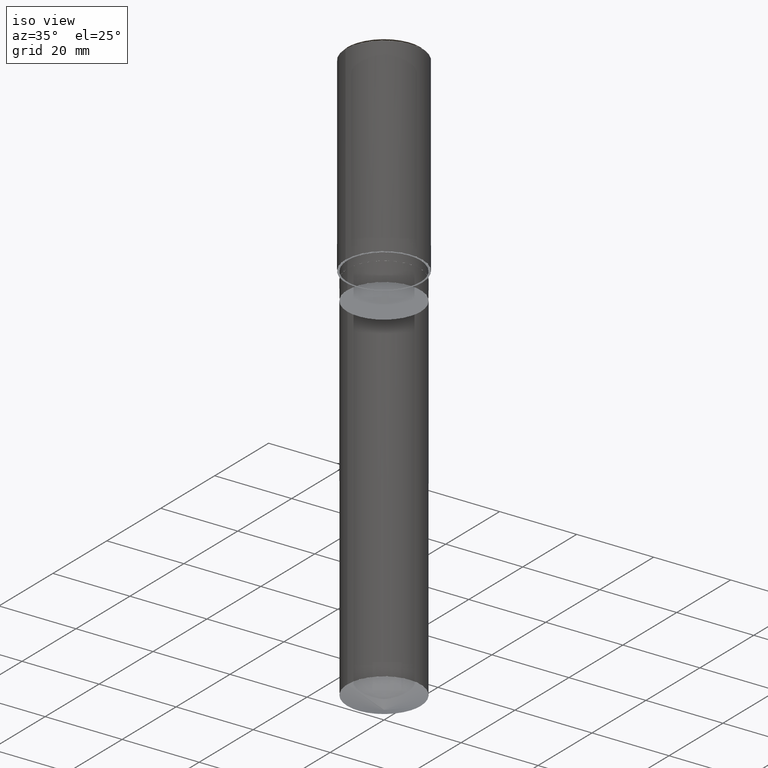
[diagram: clean part render]
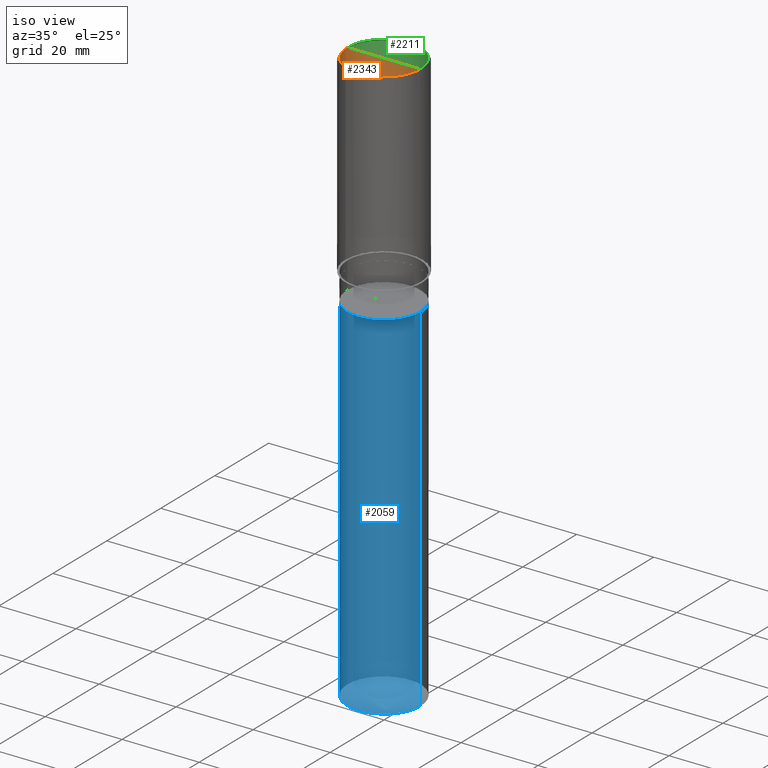
[diagram: same view with three faces highlighted in distinct colors, each labeled with its STEP entity id]
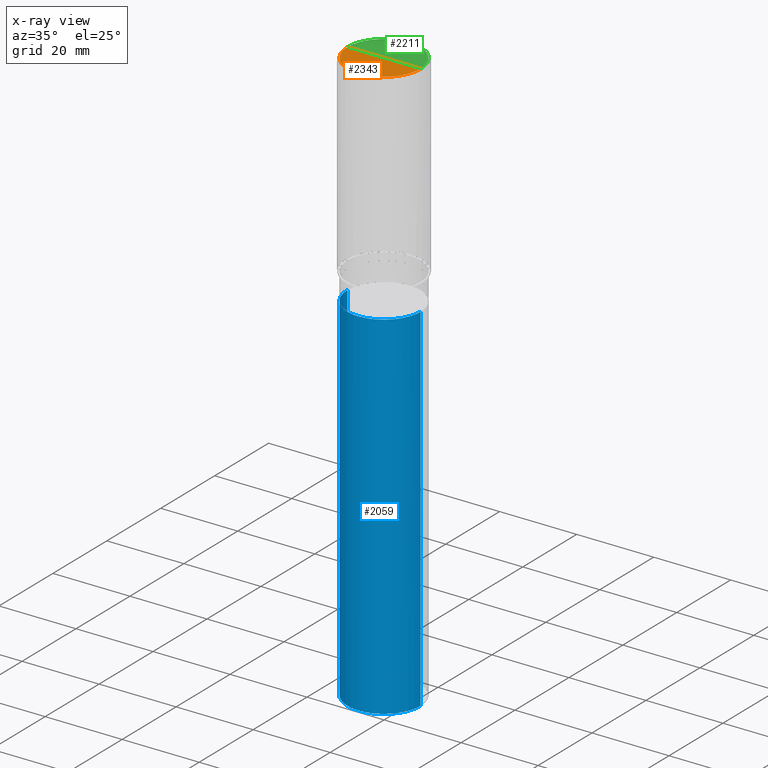
[diagram: x-ray of the same camera — body ghosted, the three highlighted faces saturated]
A machine part, iso view with three faces highlighted in distinct colors.
The next image is the same camera in x-ray (body ghosted, the three faces saturated) — at least one of them is partly hidden behind the body in this view.
Their STEP definitions:

[orange] entity #2343 — the highlighted face is a freeform B-spline surface patch.
#1946=CARTESIAN_POINT('',(9.5,0.0,50.0));
#1950=CARTESIAN_POINT('',(-9.5,0.0,50.0));
#1951=CARTESIAN_POINT('',(0.0,0.0,50.0));
#1964=CARTESIAN_POINT('',(-9.5,-9.5,50.0));
#1965=CARTESIAN_POINT('',(0.0,-9.5,50.0));
#1966=CARTESIAN_POINT('',(9.5,-9.5,50.0));
#2328=(
BOUNDED_SURFACE()
B_SPLINE_SURFACE(1,2,(
(#1950,#1964,#1965,#1966,#1946),
(#1951,#1951,#1951,#1951,#1951)
), .UNSPECIFIED.,.F.,.F.,.F.)
B_SPLINE_SURFACE_WITH_KNOTS((2,2),(3,2,3),(
0.0,1.0),(
0.0,0.5,1.0), .UNSPECIFIED.)
GEOMETRIC_REPRESENTATION_ITEM()
RATIONAL_B_SPLINE_SURFACE(((1.0,0.707106781187,1.0,0.707106781187,1.0),
(1.0,0.707106781187,1.0,0.707106781187,1.0)
))
REPRESENTATION_ITEM('')
SURFACE()
);
#2329=(
BOUNDED_CURVE()
B_SPLINE_CURVE(2,(#1946,#1966,#1965,#1964,#1950),.UNSPECIFIED.,.F.,.F.)
B_SPLINE_CURVE_WITH_KNOTS((3,2,3),
(0.0,0.5,1.0),.UNSPECIFIED.)
CURVE()
GEOMETRIC_REPRESENTATION_ITEM()
RATIONAL_B_SPLINE_CURVE((1.0,0.707106781187,1.0,0.707106781187,1.0))
REPRESENTATION_ITEM('')
);
#2330=(
BOUNDED_CURVE()
B_SPLINE_CURVE(1,(#1950,#1951),.UNSPECIFIED.,.F.,.F.)
B_SPLINE_CURVE_WITH_KNOTS((2,2),
(0.0,1.0),.UNSPECIFIED.)
CURVE()
GEOMETRIC_REPRESENTATION_ITEM()
RATIONAL_B_SPLINE_CURVE((1.0,1.0))
REPRESENTATION_ITEM('')
);
#2331=(
BOUNDED_CURVE()
B_SPLINE_CURVE(1,(#1951,#1946),.UNSPECIFIED.,.F.,.F.)
B_SPLINE_CURVE_WITH_KNOTS((2,2),
(0.0,1.0),.UNSPECIFIED.)
CURVE()
GEOMETRIC_REPRESENTATION_ITEM()
RATIONAL_B_SPLINE_CURVE((1.0,1.0))
REPRESENTATION_ITEM('')
);
#2332=VERTEX_POINT('',#1946);
#2333=VERTEX_POINT('',#1950);
#2334=VERTEX_POINT('',#1951);
#2335=EDGE_CURVE('',#2332,#2333,#2329,.T.);
#2336=EDGE_CURVE('',#2333,#2334,#2330,.T.);
#2337=EDGE_CURVE('',#2334,#2332,#2331,.T.);
#2338=ORIENTED_EDGE('',*,*,#2335,.T.);
#2339=ORIENTED_EDGE('',*,*,#2336,.T.);
#2340=ORIENTED_EDGE('',*,*,#2337,.T.);
#2341=EDGE_LOOP('',(#2338,#2339,#2340));
#2342=FACE_OUTER_BOUND('',#2341,.T.);
#2343=ADVANCED_FACE('',(#2342),#2328,.T.);

[blue] entity #2059 — the highlighted face is a freeform B-spline surface patch.
#1909=CARTESIAN_POINT('',(9.5,0.0,-99.542282774471));
#1913=CARTESIAN_POINT('',(-9.5,0.0,-99.542282774471));
#1914=CARTESIAN_POINT('',(9.5,0.0,-7.0));
#1918=CARTESIAN_POINT('',(-9.5,0.0,-7.0));
#1920=CARTESIAN_POINT('',(-9.5,-9.5,-99.542282774471));
#1921=CARTESIAN_POINT('',(0.0,-9.5,-99.542282774471));
#1922=CARTESIAN_POINT('',(9.5,-9.5,-99.542282774471));
#1923=CARTESIAN_POINT('',(-9.5,-9.5,-7.0));
#1924=CARTESIAN_POINT('',(0.0,-9.5,-7.0));
#1925=CARTESIAN_POINT('',(9.5,-9.5,-7.0));
#2040=(
BOUNDED_SURFACE()
B_SPLINE_SURFACE(1,2,(
(#1913,#1920,#1921,#1922,#1909),
(#1918,#1923,#1924,#1925,#1914)
), .UNSPECIFIED.,.F.,.F.,.F.)
B_SPLINE_SURFACE_WITH_KNOTS((2,2),(3,2,3),(
0.0,1.0),(
0.0,0.5,1.0), .UNSPECIFIED.)
GEOMETRIC_REPRESENTATION_ITEM()
RATIONAL_B_SPLINE_SURFACE(((1.0,0.707106781187,1.0,0.707106781187,1.0),
(1.0,0.707106781187,1.0,0.707106781187,1.0)
))
REPRESENTATION_ITEM('')
SURFACE()
);
#2041=(
BOUNDED_CURVE()
B_SPLINE_CURVE(2,(#1909,#1922,#1921,#1920,#1913),.UNSPECIFIED.,.F.,.F.)
B_SPLINE_CURVE_WITH_KNOTS((3,2,3),
(0.0,0.5,1.0),.UNSPECIFIED.)
CURVE()
GEOMETRIC_REPRESENTATION_ITEM()
RATIONAL_B_SPLINE_CURVE((1.0,0.707106781187,1.0,0.707106781187,1.0))
REPRESENTATION_ITEM('')
);
#2042=(
BOUNDED_CURVE()
B_SPLINE_CURVE(1,(#1913,#1918),.UNSPECIFIED.,.F.,.F.)
B_SPLINE_CURVE_WITH_KNOTS((2,2),
(0.0,1.0),.UNSPECIFIED.)
CURVE()
GEOMETRIC_REPRESENTATION_ITEM()
RATIONAL_B_SPLINE_CURVE((1.0,1.0))
REPRESENTATION_ITEM('')
);
#2043=(
BOUNDED_CURVE()
B_SPLINE_CURVE(2,(#1918,#1923,#1924,#1925,#1914),.UNSPECIFIED.,.F.,.F.)
B_SPLINE_CURVE_WITH_KNOTS((3,2,3),
(0.0,0.5,1.0),.UNSPECIFIED.)
CURVE()
GEOMETRIC_REPRESENTATION_ITEM()
RATIONAL_B_SPLINE_CURVE((1.0,0.707106781187,1.0,0.707106781187,1.0))
REPRESENTATION_ITEM('')
);
#2044=(
BOUNDED_CURVE()
B_SPLINE_CURVE(1,(#1914,#1909),.UNSPECIFIED.,.F.,.F.)
B_SPLINE_CURVE_WITH_KNOTS((2,2),
(0.0,1.0),.UNSPECIFIED.)
CURVE()
GEOMETRIC_REPRESENTATION_ITEM()
RATIONAL_B_SPLINE_CURVE((1.0,1.0))
REPRESENTATION_ITEM('')
);
#2045=VERTEX_POINT('',#1909);
#2046=VERTEX_POINT('',#1913);
#2047=VERTEX_POINT('',#1914);
#2048=VERTEX_POINT('',#1918);
#2049=EDGE_CURVE('',#2045,#2046,#2041,.T.);
#2050=EDGE_CURVE('',#2046,#2048,#2042,.T.);
#2051=EDGE_CURVE('',#2048,#2047,#2043,.T.);
#2052=EDGE_CURVE('',#2047,#2045,#2044,.T.);
#2053=ORIENTED_EDGE('',*,*,#2049,.T.);
#2054=ORIENTED_EDGE('',*,*,#2050,.T.);
#2055=ORIENTED_EDGE('',*,*,#2051,.T.);
#2056=ORIENTED_EDGE('',*,*,#2052,.T.);
#2057=EDGE_LOOP('',(#2053,#2054,#2055,#2056));
#2058=FACE_OUTER_BOUND('',#2057,.T.);
#2059=ADVANCED_FACE('',(#2058),#2040,.T.);

[green] entity #2211 — the highlighted face is a freeform B-spline surface patch.
#1946=CARTESIAN_POINT('',(9.5,0.0,50.0));
#1947=CARTESIAN_POINT('',(9.5,9.5,50.0));
#1948=CARTESIAN_POINT('',(0.0,9.5,50.0));
#1949=CARTESIAN_POINT('',(-9.5,9.5,50.0));
#1950=CARTESIAN_POINT('',(-9.5,0.0,50.0));
#1951=CARTESIAN_POINT('',(0.0,0.0,50.0));
#2196=(
BOUNDED_SURFACE()
B_SPLINE_SURFACE(1,2,(
(#1946,#1947,#1948,#1949,#1950),
(#1951,#1951,#1951,#1951,#1951)
), .UNSPECIFIED.,.F.,.F.,.F.)
B_SPLINE_SURFACE_WITH_KNOTS((2,2),(3,2,3),(
0.0,1.0),(
0.0,0.5,1.0), .UNSPECIFIED.)
GEOMETRIC_REPRESENTATION_ITEM()
RATIONAL_B_SPLINE_SURFACE(((1.0,0.707106781187,1.0,0.707106781187,1.0),
(1.0,0.707106781187,1.0,0.707106781187,1.0)
))
REPRESENTATION_ITEM('')
SURFACE()
);
#2197=(
BOUNDED_CURVE()
B_SPLINE_CURVE(2,(#1950,#1949,#1948,#1947,#1946),.UNSPECIFIED.,.F.,.F.)
B_SPLINE_CURVE_WITH_KNOTS((3,2,3),
(0.0,0.5,1.0),.UNSPECIFIED.)
CURVE()
GEOMETRIC_REPRESENTATION_ITEM()
RATIONAL_B_SPLINE_CURVE((1.0,0.707106781187,1.0,0.707106781187,1.0))
REPRESENTATION_ITEM('')
);
#2198=(
BOUNDED_CURVE()
B_SPLINE_CURVE(1,(#1946,#1951),.UNSPECIFIED.,.F.,.F.)
B_SPLINE_CURVE_WITH_KNOTS((2,2),
(0.0,1.0),.UNSPECIFIED.)
CURVE()
GEOMETRIC_REPRESENTATION_ITEM()
RATIONAL_B_SPLINE_CURVE((1.0,1.0))
REPRESENTATION_ITEM('')
);
#2199=(
BOUNDED_CURVE()
B_SPLINE_CURVE(1,(#1951,#1950),.UNSPECIFIED.,.F.,.F.)
B_SPLINE_CURVE_WITH_KNOTS((2,2),
(0.0,1.0),.UNSPECIFIED.)
CURVE()
GEOMETRIC_REPRESENTATION_ITEM()
RATIONAL_B_SPLINE_CURVE((1.0,1.0))
REPRESENTATION_ITEM('')
);
#2200=VERTEX_POINT('',#1946);
#2201=VERTEX_POINT('',#1950);
#2202=VERTEX_POINT('',#1951);
#2203=EDGE_CURVE('',#2201,#2200,#2197,.T.);
#2204=EDGE_CURVE('',#2200,#2202,#2198,.T.);
#2205=EDGE_CURVE('',#2202,#2201,#2199,.T.);
#2206=ORIENTED_EDGE('',*,*,#2203,.T.);
#2207=ORIENTED_EDGE('',*,*,#2204,.T.);
#2208=ORIENTED_EDGE('',*,*,#2205,.T.);
#2209=EDGE_LOOP('',(#2206,#2207,#2208));
#2210=FACE_OUTER_BOUND('',#2209,.T.);
#2211=ADVANCED_FACE('',(#2210),#2196,.T.);